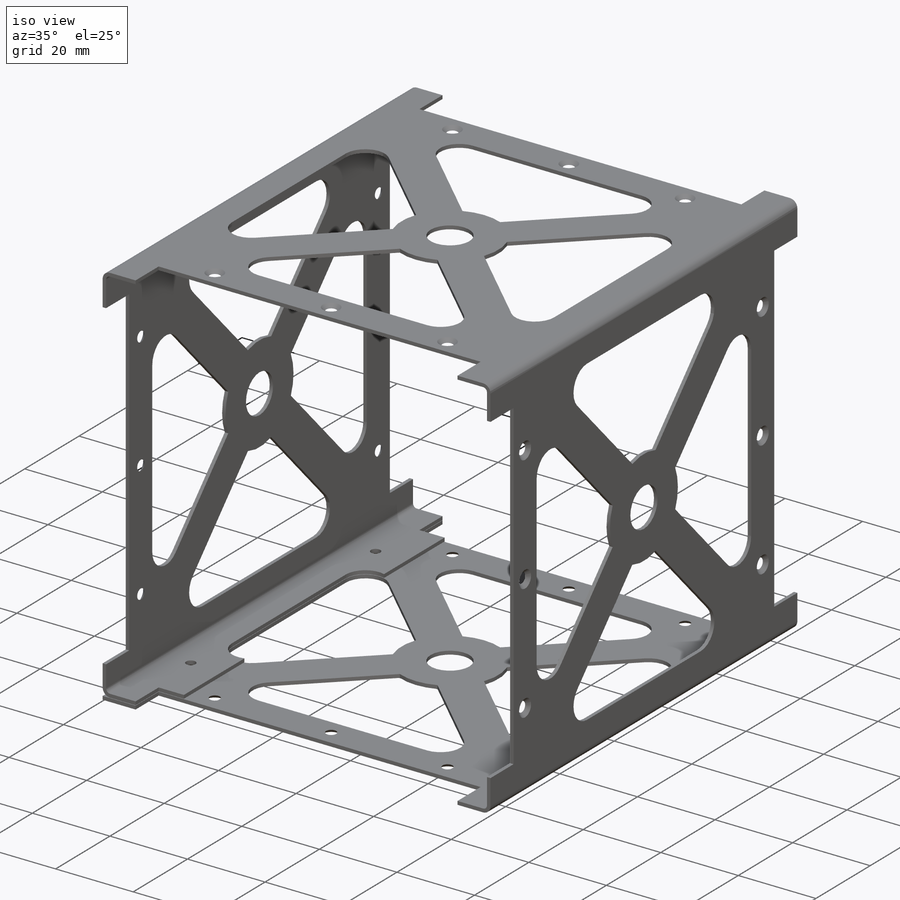
[diagram: iso view]
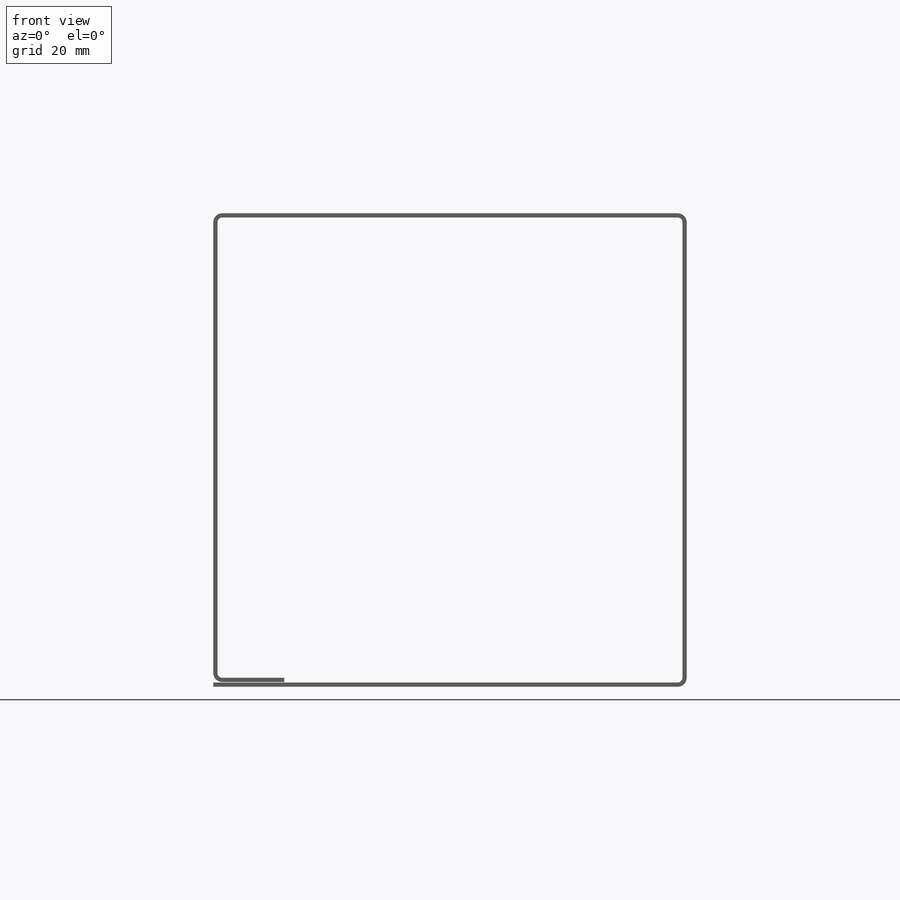
[diagram: front view]
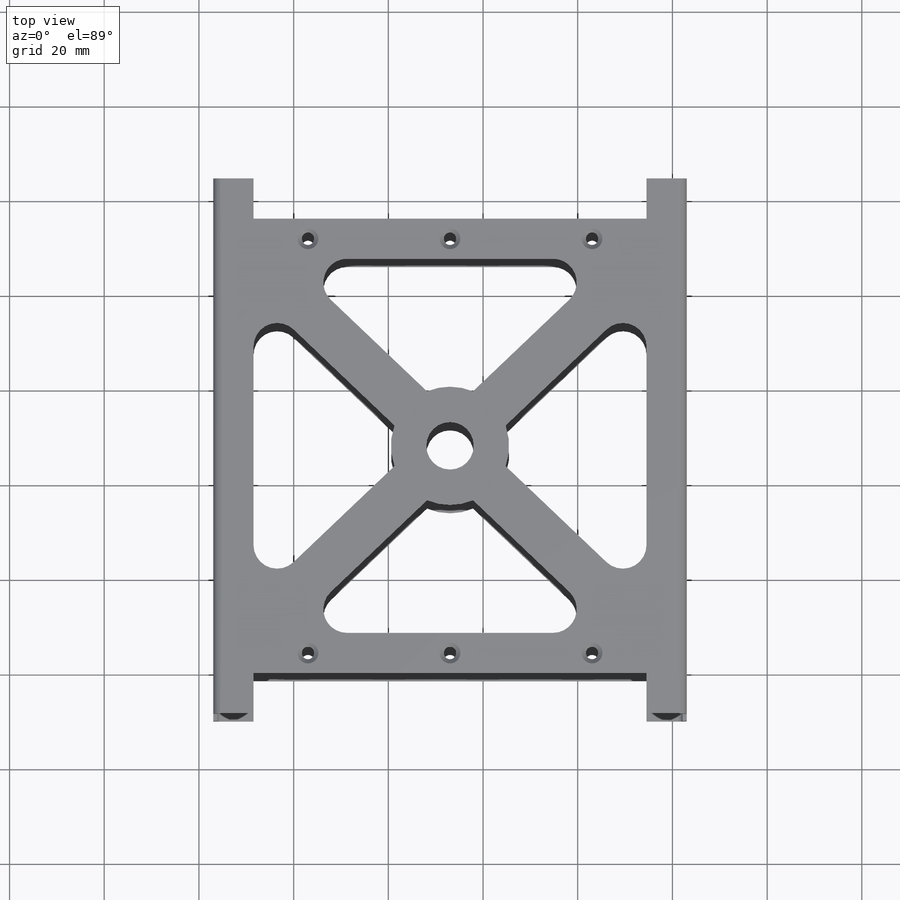
[diagram: top view]
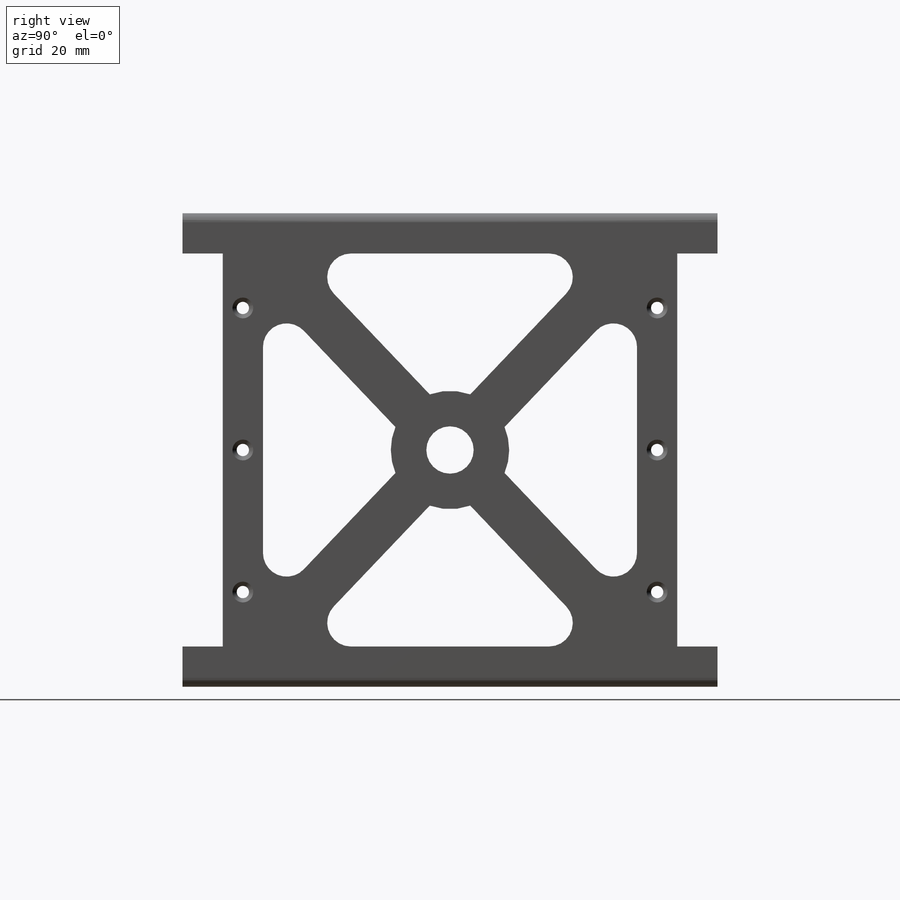
[diagram: right view]
SOLIDWORKS PART (.sldprt)
format: sldprt  version: not decoded by parser v0  size: 4,349,440 bytes
history: native  units: mm
features: sketch x78, sheet_metal_op x28, hole x9, cut_extrude x4, material x1 + 24 further entries (+13 scaffold rows collapsed; 24 parser-record rows omitted)
feature tree (196):
  scaffold x13  (default folders/planes/origin — collapsed)
  material  "6061 Alloy"
  sketch  "Sketch8"  dims[c1.D1=113.0mm c1.D2=100.0mm c1.D3=8.5mm c1.D4=8.5mm c1.D5=8.5mm c1.D6=8.5mm c2.D1=113.0mm c2.D2=100.0mm]
  sheet_metal_op  "Base-Flange2"
  sketch  "Sketch13"  dims[c1.D1=1.0mm c1.D4=90.0deg c1.D5=1.0 c1.D8=0.45mm c1.D9=0.45mm c2.D1=1.0mm c2.D2=500.0mm c2.D3=0.0mm c2.D6=10.0mm c2.D7=100.0mm]
  sketch  "Sketch16"
  sheet_metal_op  "EdgeBend2"
  sketch  "Sketch19"
  sheet_metal_op  "EdgeBend3"
  sketch  "Sketch22"
  sheet_metal_op  "EdgeBend4"
  sketch  "Sketch23"  dims[c1.D6=10.0mm c1.D7=25.0mm c1.D13=5.0mm c1.D1=8.5mm c1.D2=83.0mm c1.D3=8.5mm c1.D4=8.5mm c1.D5=~7.766065mm c1.D8=~6.46811mm c2.D5=8.5mm c2.D8=8.5mm c2.D9=5.0mm c2.D10=5.0mm c2.D11=5.0mm c2.D12=5.0mm]
  cut_extrude  "Cut-Extrude5"  Depth=10mm
  sketch  "Sketch24"  dims[c1.D6=10.0mm c1.D7=25.0mm c1.D13=5.0mm c1.D1=8.5mm c1.D2=83.0mm c1.D3=8.5mm c1.D4=8.5mm c1.D5=~7.766065mm c1.D8=~6.46811mm c2.D5=8.5mm c2.D8=8.5mm c2.D9=5.0mm c2.D10=5.0mm c2.D11=5.0mm c2.D12=5.0mm c2.D3=1.9mm]
  cut_extrude  "Cut-Extrude6"  Depth=10mm
  sketch  "Sketch25"  dims[c1.D6=10.0mm c1.D7=25.0mm c1.D13=5.0mm c1.D1=8.5mm c1.D2=83.0mm c1.D3=8.5mm c1.D4=8.5mm c1.D5=~7.766065mm c1.D8=~6.46811mm c2.D5=8.5mm c2.D8=8.5mm c2.D9=5.0mm c2.D10=5.0mm c2.D11=5.0mm c2.D12=5.0mm c2.D3=1.9mm]
  cut_extrude  "Cut-Extrude7"  Depth=10mm
  sketch  "Sketch26"  dims[c1.D6=10.0mm c1.D7=25.0mm c1.D13=5.0mm c1.D1=8.5mm c1.D2=83.0mm c1.D3=8.5mm c1.D4=8.5mm c1.D5=~7.766065mm c1.D8=~6.46811mm c2.D5=8.5mm c2.D8=8.5mm c2.D9=5.0mm c2.D10=5.0mm c2.D11=5.0mm c2.D12=5.0mm c2.D3=1.9mm]
  cut_extrude  "Cut-Extrude8"  Depth=10mm
  hole  "CSK for M2 Flat Head Machine Screw2"  Diameter=2.4mm Depth=0.899mm
  sketch  "Sketch29"
  sketch  "Sketch30"  dims[hole-wizard template sketch: 55 standard entries collapsed; hole parameters kept: c17.Thru Hole Depth=0.899mm c17.Near C'Sink Dia.=4.4mm c17.D4=~3.666174mm c17.Near C'Sink Angle=90.0deg]
  hole  "CSK for M2 Flat Head Machine Screw3"  Diameter=2.4mm Depth=0.899mm
  sketch  "Sketch31"
  sketch  "Sketch32"  dims[hole-wizard template sketch: 55 standard entries collapsed; hole parameters kept: c17.Thru Hole Depth=0.899mm c17.Near C'Sink Dia.=4.4mm c17.D4=~3.666174mm c17.Near C'Sink Angle=90.0deg]
  hole  "CSK for M2 Flat Head Machine Screw4"  Diameter=2.4mm Depth=0.899mm
  sketch  "Sketch33"
  sketch  "Sketch34"  dims[hole-wizard template sketch: 55 standard entries collapsed; hole parameters kept: c17.Thru Hole Depth=0.899mm c17.Near C'Sink Dia.=4.4mm c17.D4=~3.666174mm c17.Near C'Sink Angle=90.0deg]
  hole  "CSK for M2 Flat Head Machine Screw5"  Diameter=2.4mm Depth=0.899mm
  sketch  "Sketch35"
  sketch  "Sketch36"  dims[hole-wizard template sketch: 55 standard entries collapsed; hole parameters kept: c17.Thru Hole Depth=0.899mm c17.Near C'Sink Dia.=4.4mm c17.D4=~3.666174mm c17.Near C'Sink Angle=90.0deg]
  hole  "CSK for M2 Flat Head Machine Screw6"  Diameter=2.4mm Depth=100mm
  sketch  "Sketch37"
  sketch  "Sketch38"  dims[hole-wizard template sketch: 55 standard entries collapsed; hole parameters kept: c17.Thru Hole Depth=100.0mm c17.Near C'Sink Dia.=4.4mm c17.D4=~3.666174mm c17.Near C'Sink Angle=90.0deg]
  hole  "CSK for M2 Flat Head Machine Screw7"  Diameter=2.4mm Depth=1.899mm
  sketch  "Sketch39"
  sketch  "Sketch40"  dims[hole-wizard template sketch: 55 standard entries collapsed; hole parameters kept: c17.Thru Hole Depth=1.899mm c17.Near C'Sink Dia.=4.4mm c17.D4=~3.666174mm c17.Near C'Sink Angle=90.0deg]
  hole  "CSK for M2 Flat Head Machine Screw8"  Diameter=2.4mm Depth=100mm
  sketch  "Sketch41"
  sketch  "Sketch42"  dims[hole-wizard template sketch: 55 standard entries collapsed; hole parameters kept: c17.Thru Hole Depth=100.0mm c17.Near C'Sink Dia.=4.4mm c17.D4=~3.666174mm c17.Near C'Sink Angle=90.0deg]
  hole  "CSK for M2 Flat Head Machine Screw9"  Diameter=2.4mm Depth=100mm
  sketch  "Sketch43"
  sketch  "Sketch44"  dims[hole-wizard template sketch: 55 standard entries collapsed; hole parameters kept: c17.Thru Hole Depth=100.0mm c17.Near C'Sink Dia.=4.4mm c17.D4=~3.666174mm c17.Near C'Sink Angle=90.0deg]
  hole  "CSK for M2 Flat Head Machine Screw10"  Diameter=2.4mm Depth=100mm
  sketch  "Sketch45"
  sketch  "Sketch46"  dims[hole-wizard template sketch: 55 standard entries collapsed; hole parameters kept: c17.Thru Hole Depth=100.0mm c17.Near C'Sink Dia.=4.4mm c17.D4=~3.666174mm c17.Near C'Sink Angle=90.0deg]
  sketch  "Bend-Lines1"
  sketch  "Bounding-Box1"
  sheet_metal_op  "Sheet-Metal2"
  "Flat-Pattern2"
  sketch  "Bend-Lines3"
  sketch  "Bounding-Box3"
  parser-record x24  (decoder bookkeeping rows leaked as tree rows — omitted from the tree; the rows remain in map.json)
  sheet_metal_op  "Sheet-Metal3"
  "Flat-Pattern2"
  sketch  "Bend-Lines3"
  sketch  "Bounding-Box3"
  sheet_metal_op  "Sheet-Metal4"
  "Flat-Pattern2"
  sketch  "Bend-Lines3"
  sketch  "Bounding-Box3"
  sheet_metal_op  "Sheet-Metal5"
  "Flat-Pattern2"
  sketch  "Bend-Lines3"
  sketch  "Bounding-Box3"
  sheet_metal_op  "Sheet-Metal6"
  "Flat-Pattern2"
  sketch  "Bend-Lines3"
  sketch  "Bounding-Box3"
  sketch  "Sketch23-1"  dims[c1.D6=10.0mm c1.D7=25.0mm c1.D13=5.0mm c1.D1=8.5mm c1.D2=83.0mm c1.D3=8.5mm c1.D4=8.5mm c1.D5=~7.766065mm c1.D8=~6.46811mm c2.D5=8.5mm c2.D8=8.5mm c2.D9=5.0mm c2.D10=5.0mm c2.D11=5.0mm c2.D12=5.0mm]  <repeated x16 — deduplicated>
  sheet_metal_op  "Sheet-Metal11"
  "Flat-Pattern2"
  sketch  "Bend-Lines3"
  sketch  "Bounding-Box3"
  sheet_metal_op  "Sheet-Metal12"
  "Flat-Pattern2"
  sketch  "Bend-Lines3"
  sketch  "Bounding-Box3"
  sheet_metal_op  "Sheet-Metal13"
  "Flat-Pattern2"
  sketch  "Bend-Lines3"
  sketch  "Bounding-Box3"
  sheet_metal_op  "Sheet-Metal14"
  "Flat-Pattern2"
  sketch  "Bend-Lines3"
  sketch  "Bounding-Box3"
  sheet_metal_op  "Sheet-Metal16"
  "Flat-Pattern2"
  sketch  "Bend-Lines3"
  sketch  "Bounding-Box3"
  sheet_metal_op  "Sheet-Metal17"
  "Flat-Pattern2"
  sketch  "Bend-Lines3"
  sketch  "Bounding-Box3"
  sheet_metal_op  "Sheet-Metal18"
  "Flat-Pattern2"
  sketch  "Bend-Lines3"
  sketch  "Bounding-Box3"
  sheet_metal_op  "Sheet-Metal19"
  "Flat-Pattern2"
  sketch  "Bend-Lines3"
  sketch  "Bounding-Box3"
  sheet_metal_op  "Sheet-Metal20"
  "Flat-Pattern2"
  sketch  "Bend-Lines3"
  sketch  "Bounding-Box3"
  sheet_metal_op  "Sheet-Metal21"
  "Flat-Pattern2"
  sketch  "Bend-Lines3"
  sketch  "Bounding-Box3"
  sheet_metal_op  "Sheet-Metal22"
  "Flat-Pattern2"
  sketch  "Bend-Lines3"
  sketch  "Bounding-Box3"
  sheet_metal_op  "Sheet-Metal23"
  "Flat-Pattern2"
  sketch  "Bend-Lines3"
  sketch  "Bounding-Box3"
  sheet_metal_op  "Sheet-Metal24"
  "Flat-Pattern2"
  sketch  "Bend-Lines3"
  sketch  "Bounding-Box3"
  sheet_metal_op  "Sheet-Metal25"
  "Flat-Pattern25"
  sketch  "Bend-Lines4"
  sketch  "Bounding-Box4"
  sheet_metal_op  "Sheet-Metal26"
  "Flat-Pattern26"
  sketch  "Bend-Lines5"
  sketch  "Bounding-Box5"
  sheet_metal_op  "Sheet-Metal27"
  "Flat-Pattern27"
  sketch  "Bend-Lines6"
  sketch  "Bounding-Box6"
  sheet_metal_op  "Sheet-Metal28"
  "Flat-Pattern28"
  sketch  "Bend-Lines7"
  sketch  "Bounding-Box7"
  sheet_metal_op  "Sheet-Metal29"
  "Flat-Pattern27"
  sketch  "Bend-Lines3"
  sketch  "Bounding-Box3"
  sheet_metal_op  "Sheet-Metal30"
  "Flat-Pattern2"
  sketch  "Bend-Lines3"
  sketch  "Bounding-Box3"
decode coverage: 44 of 134 modeling features carry decoded parameters; 24 rows unclassified (native names shown)
note: ~ marks probable driven/reference dimensions
summary: Diameter pulled from absorbed wizard sketch
note: suppression state not decoded; provenance and decode notes live in map.json
